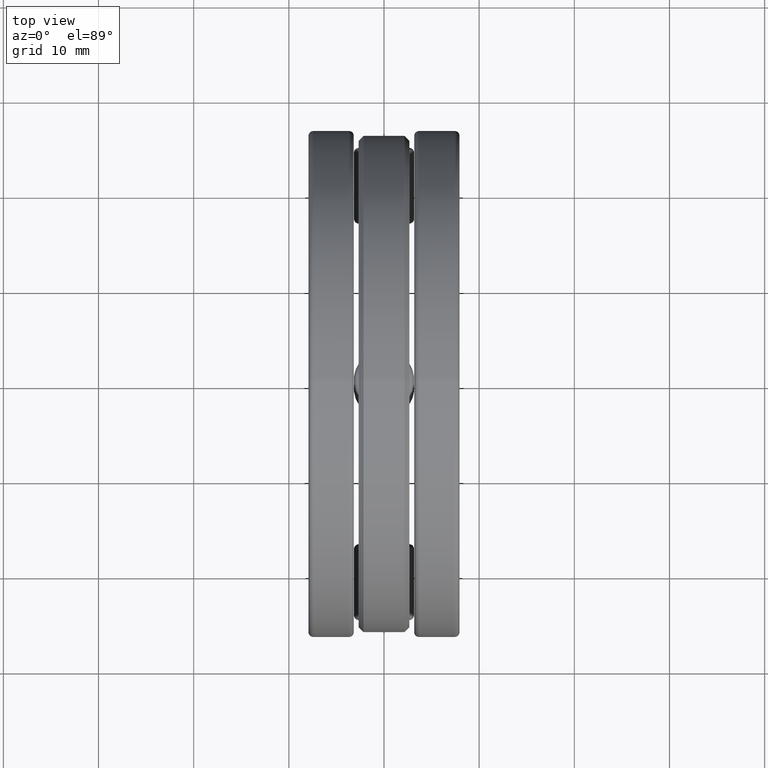
[diagram: clean part render]
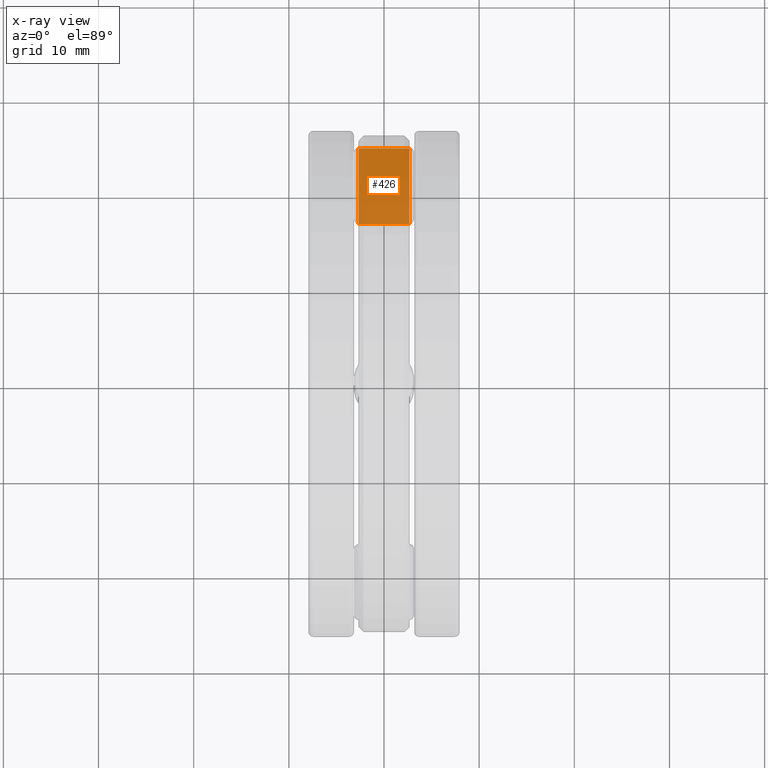
[diagram: x-ray — body ghosted, one internal face saturated and labeled with its STEP entity id]
A machine part, top view, then the same camera in x-ray: the body is ghosted and one INTERNAL B-rep face — a face not visible from any outside direction — is saturated and labeled: STEP entity #426.
In plain terms, the highlighted planar face has unit normal (0, 0, -1).
Its self-contained STEP definition (entity closure, byte-faithful):
#6 = VERTEX_POINT ( 'NONE', #566 ) ;
#29 = CARTESIAN_POINT ( 'NONE',  ( -0.1049999999999999700, -3.642683199206872500E-017, -0.1250000000000000300 ) ) ;
#89 = DIRECTION ( 'NONE',  ( 1.000000000000000000, -0.0000000000000000000, -0.0000000000000000000 ) ) ;
#101 = EDGE_CURVE ( 'NONE', #628, #356, #783, .T. ) ;
#130 = FACE_OUTER_BOUND ( 'NONE', #1354, .T. ) ;
#191 = EDGE_CURVE ( 'NONE', #1382, #6, #1199, .T. ) ;
#283 = PLANE ( 'NONE',  #803 ) ;
#333 = VECTOR ( 'NONE', #465, 39.37007874015748100 ) ;
#356 = VERTEX_POINT ( 'NONE', #1254 ) ;
#386 = VECTOR ( 'NONE', #1409, 39.37007874015748100 ) ;
#394 = EDGE_CURVE ( 'NONE', #628, #1382, #1298, .T. ) ;
#426 = ADVANCED_FACE ( 'NONE', ( #130 ), #283, .F. ) ;
#456 = DIRECTION ( 'NONE',  ( -0.0000000000000000000, 1.000000000000000000, 5.452790406515496400E-017 ) ) ;
#465 = DIRECTION ( 'NONE',  ( -0.0000000000000000000, 1.000000000000000000, 5.452790406515496400E-017 ) ) ;
#566 = CARTESIAN_POINT ( 'NONE',  ( 0.1050000000000000400, 0.9768749999999999400, -0.1249999999999999900 ) ) ;
#628 = VERTEX_POINT ( 'NONE', #651 ) ;
#642 = CARTESIAN_POINT ( 'NONE',  ( -0.3125000000000000000, 0.9768749999999999400, -0.1249999999999999900 ) ) ;
#645 = DIRECTION ( 'NONE',  ( 0.0000000000000000000, 1.000000000000000000, 5.452790406515496400E-017 ) ) ;
#646 = ORIENTED_EDGE ( 'NONE', *, *, #676, .F. ) ;
#651 = CARTESIAN_POINT ( 'NONE',  ( -0.1049999999999999700, 0.6637499999999999500, -0.1250000000000000000 ) ) ;
#666 = ORIENTED_EDGE ( 'NONE', *, *, #191, .T. ) ;
#676 = EDGE_CURVE ( 'NONE', #356, #6, #818, .T. ) ;
#783 = LINE ( 'NONE', #29, #1340 ) ;
#803 = AXIS2_PLACEMENT_3D ( 'NONE', #1313, #1327, #645 ) ;
#818 = LINE ( 'NONE', #642, #1248 ) ;
#929 = CARTESIAN_POINT ( 'NONE',  ( -0.3125000000000000000, 0.6637499999999999500, -0.1250000000000000000 ) ) ;
#953 = ORIENTED_EDGE ( 'NONE', *, *, #101, .F. ) ;
#1158 = CARTESIAN_POINT ( 'NONE',  ( 0.1050000000000000400, 2.123026134154880700E-017, -0.1250000000000000300 ) ) ;
#1189 = CARTESIAN_POINT ( 'NONE',  ( 0.1050000000000000400, 0.6637499999999999500, -0.1250000000000000000 ) ) ;
#1199 = LINE ( 'NONE', #1158, #333 ) ;
#1248 = VECTOR ( 'NONE', #89, 39.37007874015748100 ) ;
#1254 = CARTESIAN_POINT ( 'NONE',  ( -0.1049999999999999700, 0.9768749999999999400, -0.1249999999999999900 ) ) ;
#1298 = LINE ( 'NONE', #929, #386 ) ;
#1313 = CARTESIAN_POINT ( 'NONE',  ( -0.3125000000000000000, 0.6637499999999999500, -0.1250000000000000000 ) ) ;
#1327 = DIRECTION ( 'NONE',  ( 0.0000000000000000000, 5.452790406515496400E-017, -1.000000000000000000 ) ) ;
#1340 = VECTOR ( 'NONE', #456, 39.37007874015748100 ) ;
#1354 = EDGE_LOOP ( 'NONE', ( #666, #646, #953, #1355 ) ) ;
#1355 = ORIENTED_EDGE ( 'NONE', *, *, #394, .T. ) ;
#1382 = VERTEX_POINT ( 'NONE', #1189 ) ;
#1409 = DIRECTION ( 'NONE',  ( 1.000000000000000000, -0.0000000000000000000, -0.0000000000000000000 ) ) ;